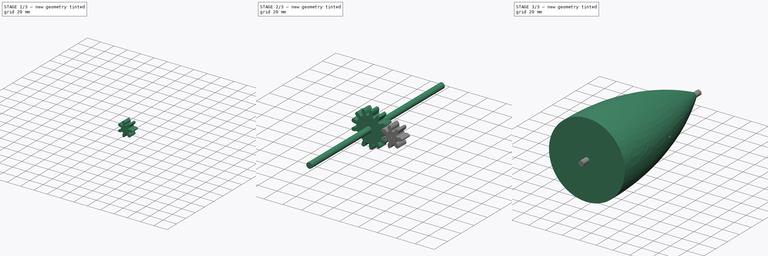
[diagram: build sequence overview — one tinted view per stage of 3, left to right]
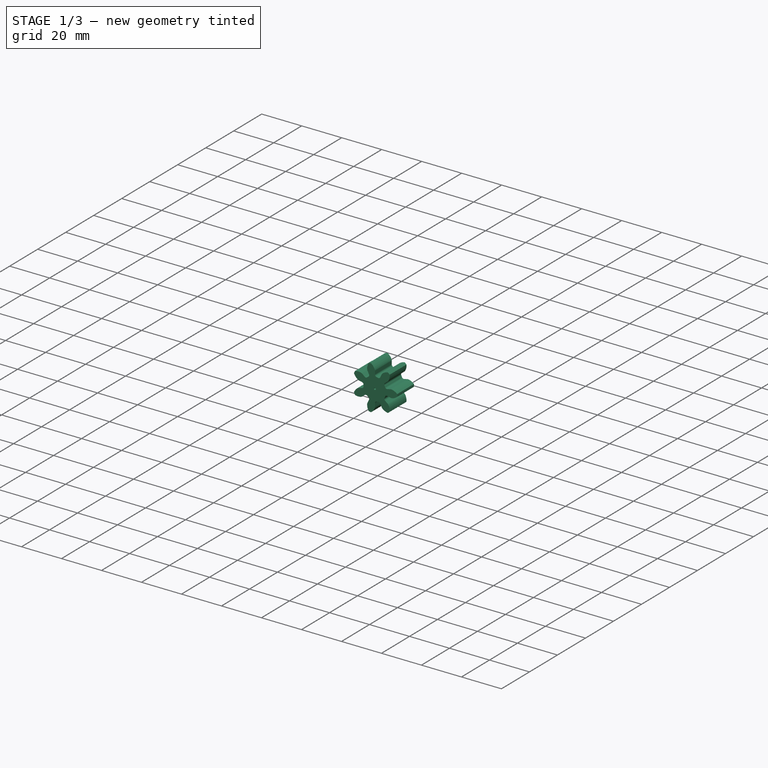
[diagram: stage 1 of 3 — iso view after this stage's code; geometry added in this stage tinted green]
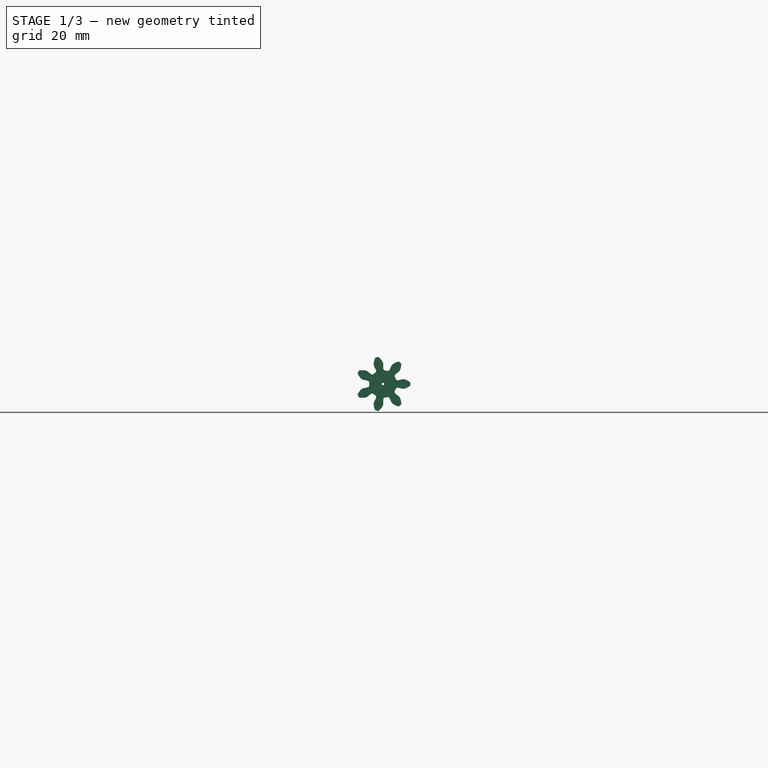
[diagram: stage 1 of 3 — front view after this stage's code; geometry added in this stage tinted green]
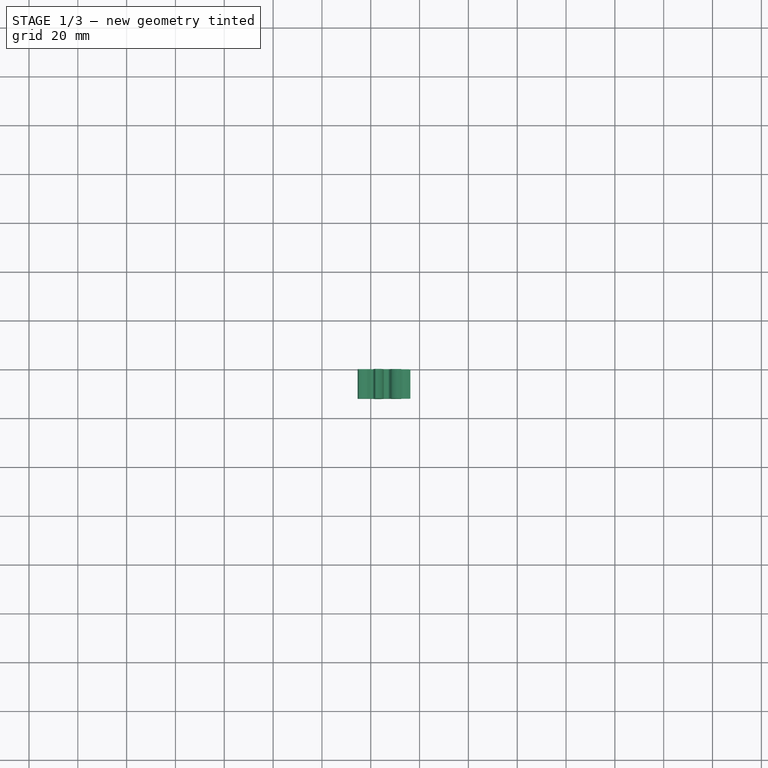
[diagram: stage 1 of 3 — top view after this stage's code; geometry added in this stage tinted green]
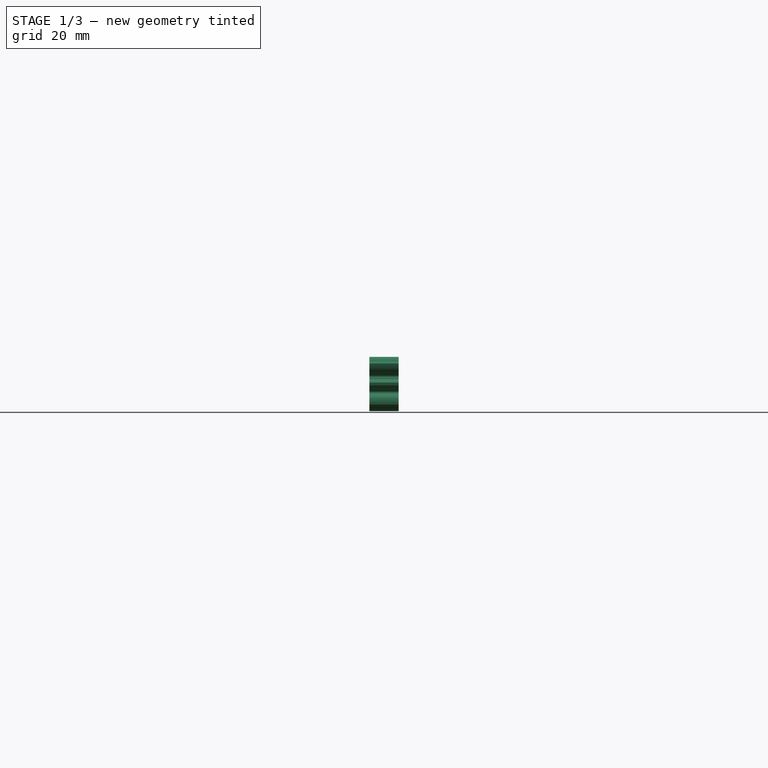
[diagram: stage 1 of 3 — right view after this stage's code; geometry added in this stage tinted green]
FCSTD DOCUMENT  (FreeCAD 0.16R6705 (Git))
Label: puntale
License: All rights reserved
LicenseURL: http://it.wikipedia.org/wiki/<copyright redacted>
objects: Sketcher::SketchObject×8, PartDesign::Pad×3, Part::Loft×2, Part::Part2DObjectPython×2, Part::MultiFuse×1, PartDesign::Pocket×1
note: 21 computed .brp shape members not serialized (recipe doc carries the construction recipe); baked Part::Feature solids carry a one-line shape summary decoded from their .brp

FEATURE [Part::Part2DObjectPython] InvoluteGear001  # Draft 2D object (typed FeaturePython)
  ExternalGear = true
  HighPrecision = true
  Modules = 2.5
  NumberOfTeeth = 7
  Placement = pos=(25,0,0) rot=(1,0,0;1.5708rad)
  PressureAngle = 20
FEATURE [PartDesign::Pad] Pad003
  Length = 12
  Length2 = 100
  Placement = pos=(25,0,0) rot=(1,0,0;1.5708rad)
  Sketch = -> InvoluteGear001
  Type = 0
FEATURE [Sketcher::SketchObject] Sketch007
  Placement = pos=(25,-12,0) rot=(1,0,0;1.5708rad)
  Support = -> Pad003 [Face72]
  sketch-geometry (1):
    g0: Circle CenterX=0 CenterY=0 CenterZ=0 NormalX=0 NormalY=0 NormalZ=1 Radius=0.5
  constraints (1):
    c: Radius(g0) = 0.5
FEATURE [PartDesign::Pocket] Pocket
  Length = 5
  Placement = pos=(25,0,0) rot=(1,0,0;1.5708rad)
  Sketch = -> Sketch007
  Type = 1
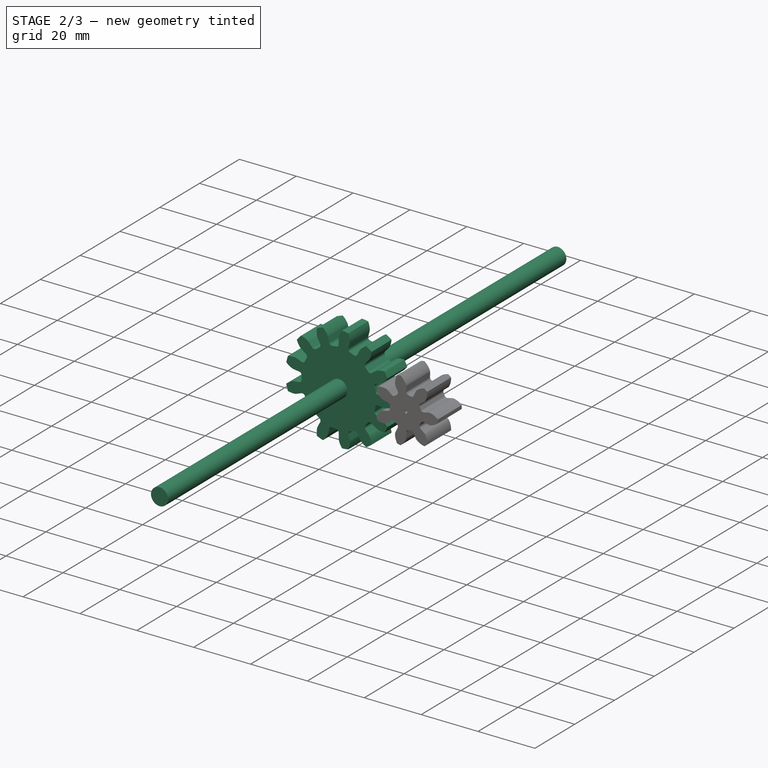
[diagram: stage 2 of 3 — iso view after this stage's code; geometry added in this stage tinted green]
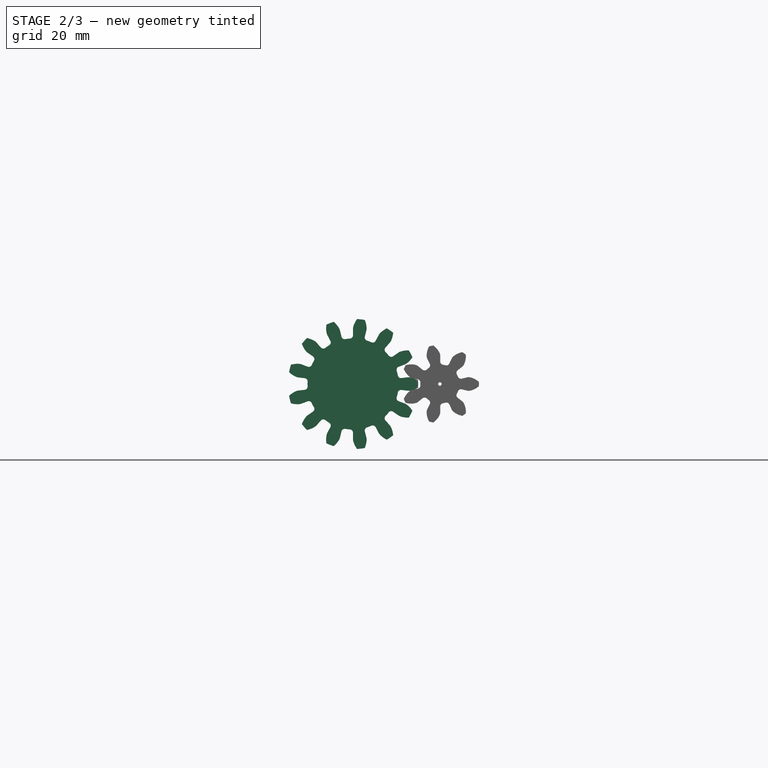
[diagram: stage 2 of 3 — front view after this stage's code; geometry added in this stage tinted green]
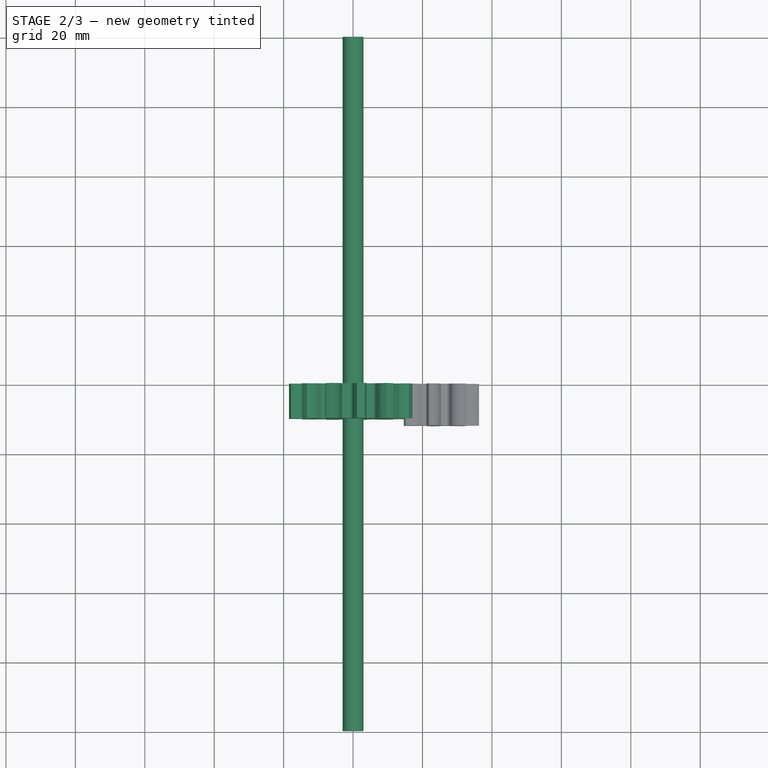
[diagram: stage 2 of 3 — top view after this stage's code; geometry added in this stage tinted green]
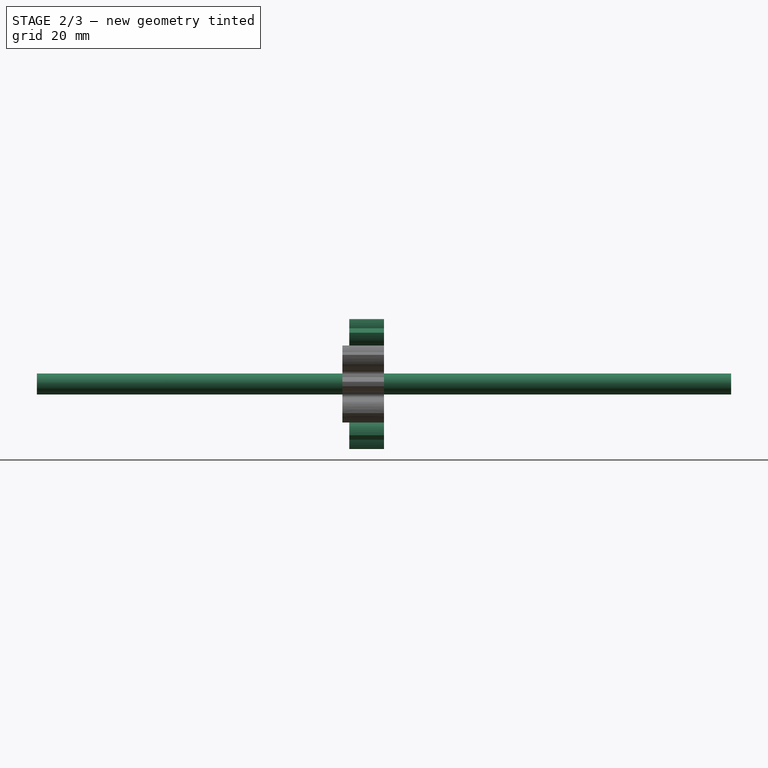
[diagram: stage 2 of 3 — right view after this stage's code; geometry added in this stage tinted green]
FEATURE [Part::Part2DObjectPython] InvoluteGear  # Draft 2D object (typed FeaturePython)
  ExternalGear = true
  HighPrecision = true
  Modules = 2.5
  NumberOfTeeth = 13
  PressureAngle = 10
FEATURE [PartDesign::Pad] Pad
  Length = 10
  Length2 = 100
  Sketch = -> InvoluteGear
  Type = 0
FEATURE [Sketcher::SketchObject] Sketch006
  Placement = pos=(0,0,0) rot=(1,0,0;3.14159rad)
  sketch-geometry (1):
    g0: Circle CenterX=0 CenterY=0 CenterZ=0 NormalX=0 NormalY=0 NormalZ=1 Radius=3.00999
FEATURE [PartDesign::Pad] Pad002
  Length = 200
  Length2 = 200
  Midplane = true
  Placement = pos=(0,0,0) rot=(1,0,0;3.14159rad)
  Sketch = -> Sketch006
  Type = 0
FEATURE [Part::MultiFuse] Fusion  label="ingranaggio"
  Placement = pos=(0,0,0) rot=(1,0,0;1.5708rad)
  Shapes = -> [Pad002,Pad]
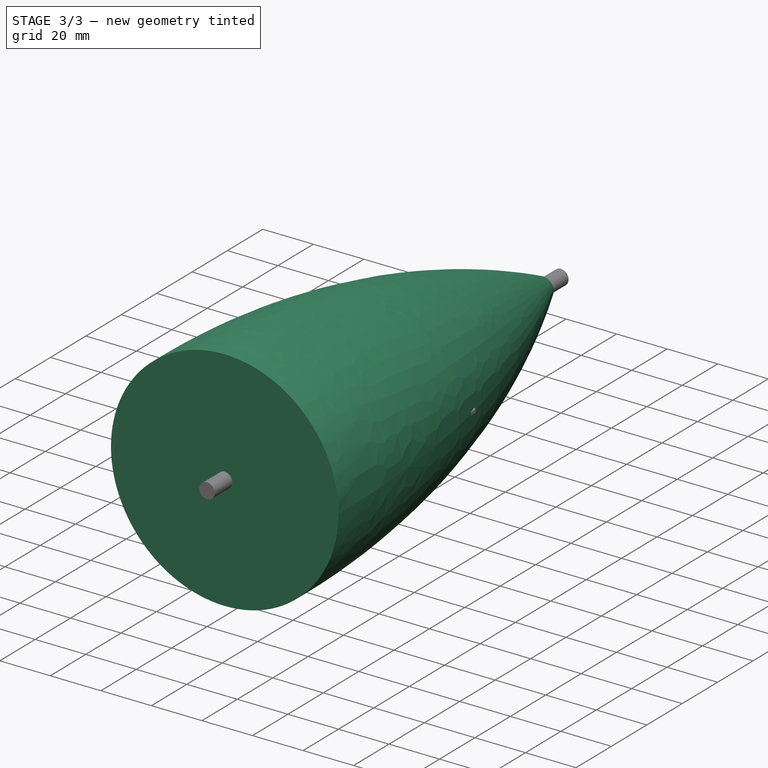
[diagram: stage 3 of 3 — iso view after this stage's code; geometry added in this stage tinted green]
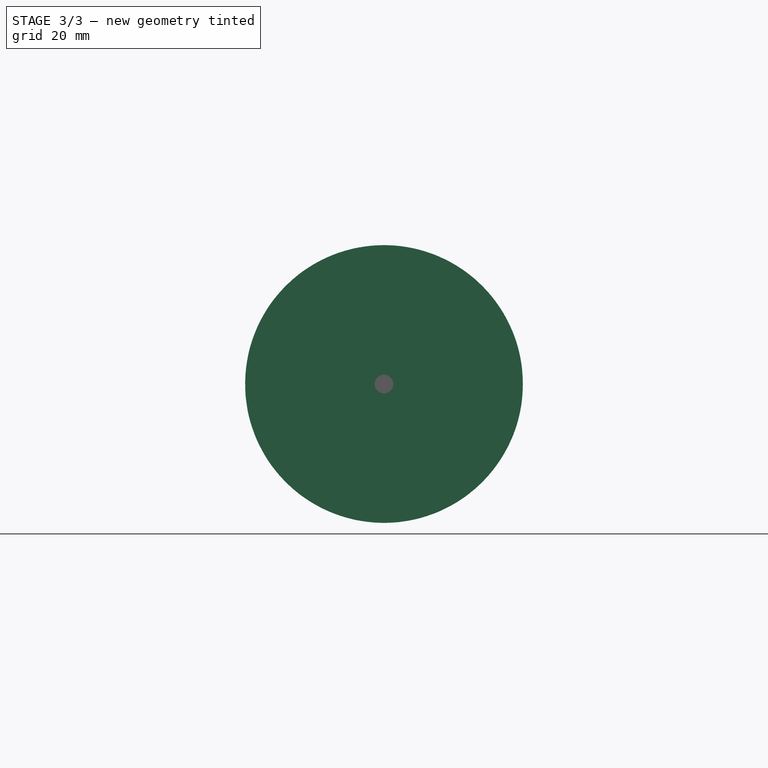
[diagram: stage 3 of 3 — front view after this stage's code; geometry added in this stage tinted green]
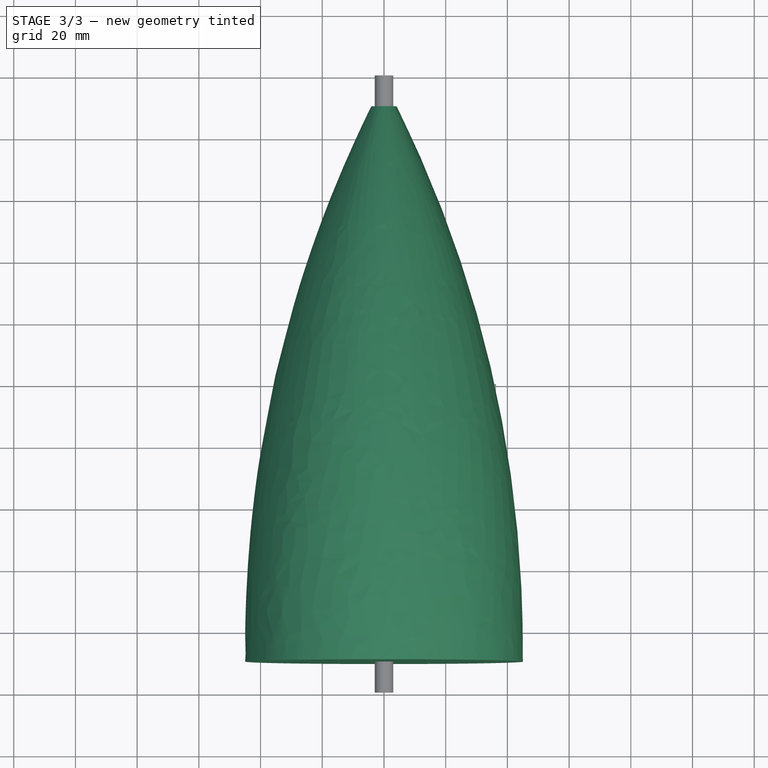
[diagram: stage 3 of 3 — top view after this stage's code; geometry added in this stage tinted green]
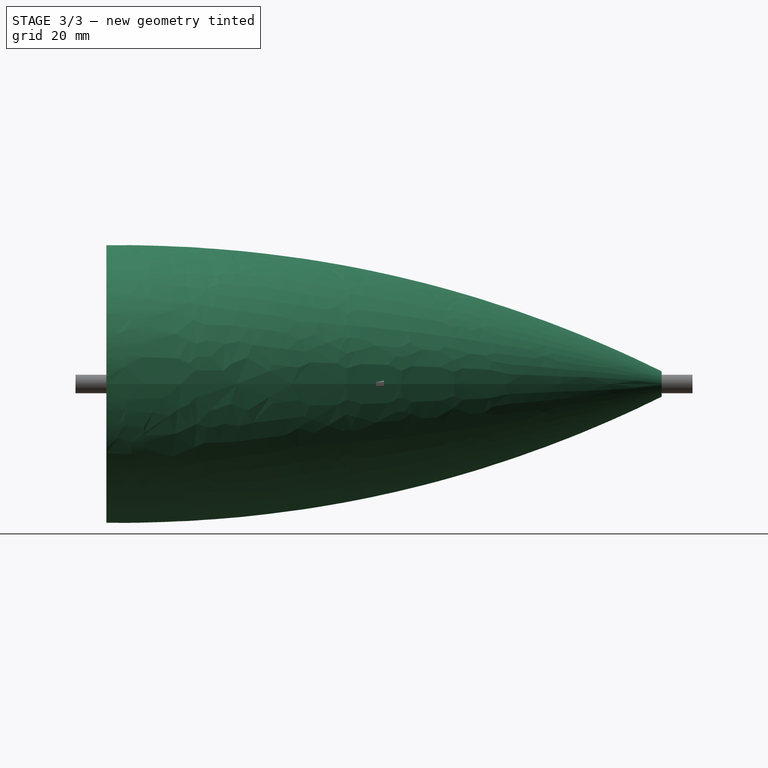
[diagram: stage 3 of 3 — right view after this stage's code; geometry added in this stage tinted green]
FEATURE [Sketcher::SketchObject] Sketch
  Placement = pos=(0,90,0) rot=(-1,0,0;4.71239rad)
  sketch-geometry (1):
    g0: Circle CenterX=0 CenterY=0 CenterZ=0 NormalX=0 NormalY=0 NormalZ=1 Radius=4.12022
FEATURE [Sketcher::SketchObject] Sketch001
  Placement = pos=(0,0,0) rot=(-1,0,0;4.71239rad)
  sketch-geometry (1):
    g0: Circle CenterX=0 CenterY=0 CenterZ=0 NormalX=0 NormalY=0 NormalZ=1 Radius=35.8086
  constraints (1):
    c: Radius(g0) = 35.8086
FEATURE [Sketcher::SketchObject] Sketch002
  Placement = pos=(0,-90,0) rot=(-1,0,0;4.71239rad)
  sketch-geometry (1):
    g0: Circle CenterX=0 CenterY=0 CenterZ=0 NormalX=0 NormalY=0 NormalZ=1 Radius=45
  constraints (1):
    c: Radius(g0) = 45
FEATURE [Part::Loft] Loft  label="esterno"
  Closed = false
  Ruled = false
  Sections = -> [Sketch,Sketch001,Sketch002]
  Solid = true
FEATURE [Sketcher::SketchObject] Sketch003
  Placement = pos=(0,90,0) rot=(1,0,0;1.5708rad)
  sketch-geometry (1):
    g0: Circle CenterX=0 CenterY=0 CenterZ=0 NormalX=0 NormalY=0 NormalZ=1 Radius=4.12022
FEATURE [Sketcher::SketchObject] Sketch004
  Placement = pos=(0,0,0) rot=(1,0,0;1.5708rad)
  sketch-geometry (1):
    g0: Circle CenterX=0 CenterY=0 CenterZ=0 NormalX=0 NormalY=0 NormalZ=1 Radius=3.8086
  constraints (1):
    c: Radius(g0) = 3.8086
FEATURE [Sketcher::SketchObject] Sketch005
  Placement = pos=(0,-90,0) rot=(1,0,0;1.5708rad)
  sketch-geometry (1):
    g0: Circle CenterX=0 CenterY=0 CenterZ=0 NormalX=0 NormalY=0 NormalZ=1 Radius=45
  constraints (1):
    c: Radius(g0) = 45
FEATURE [Part::Loft] Loft001  label="interno"
  Closed = false
  Ruled = false
  Sections = -> [Sketch003,Sketch004,Sketch005]
  Solid = true
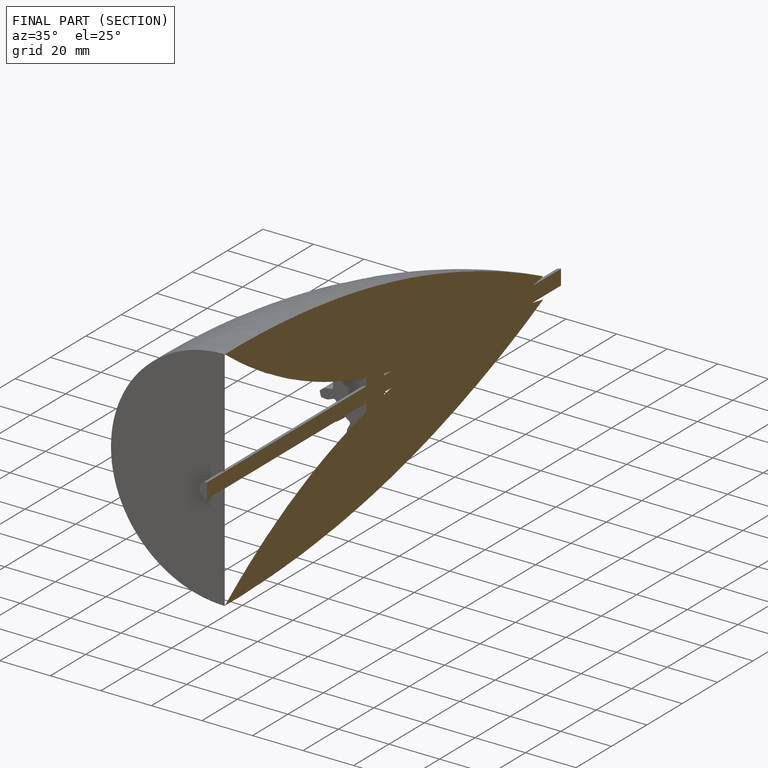
[diagram: finished part — half-section view (interior)]
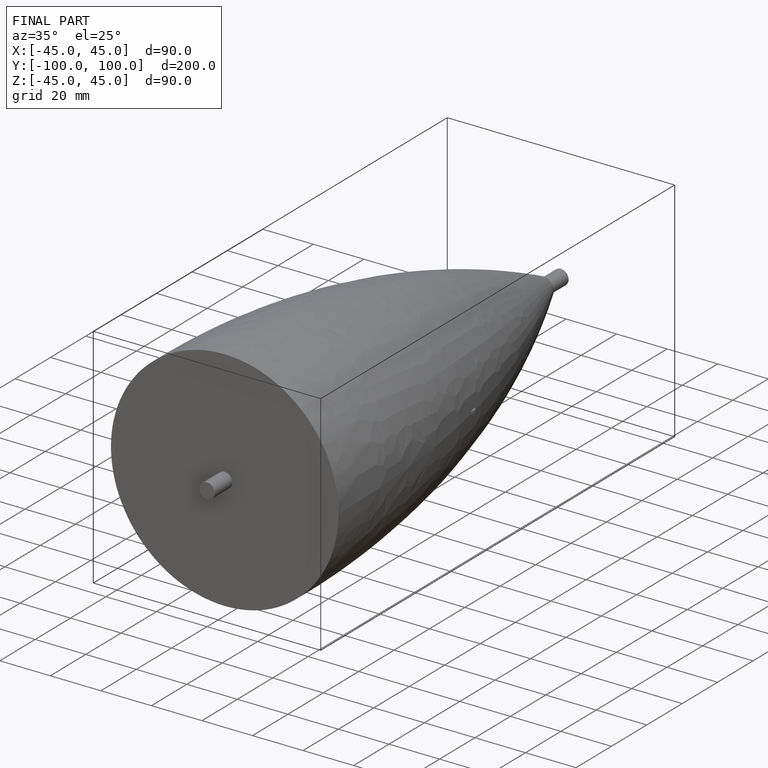
[diagram: finished part — iso view with bounding-box wireframe]
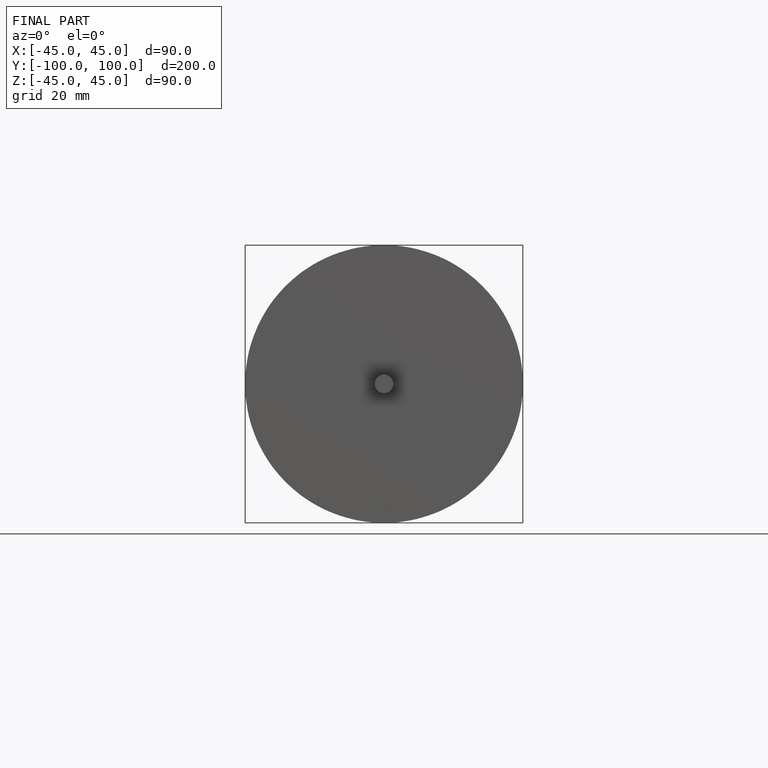
[diagram: finished part — front view with bounding-box wireframe]
